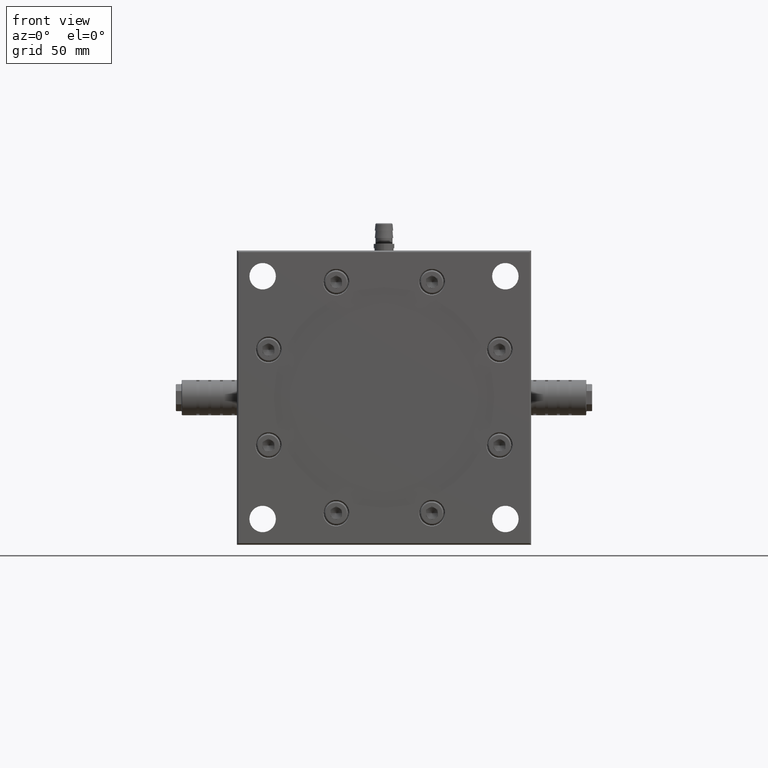
[diagram: clean part render]
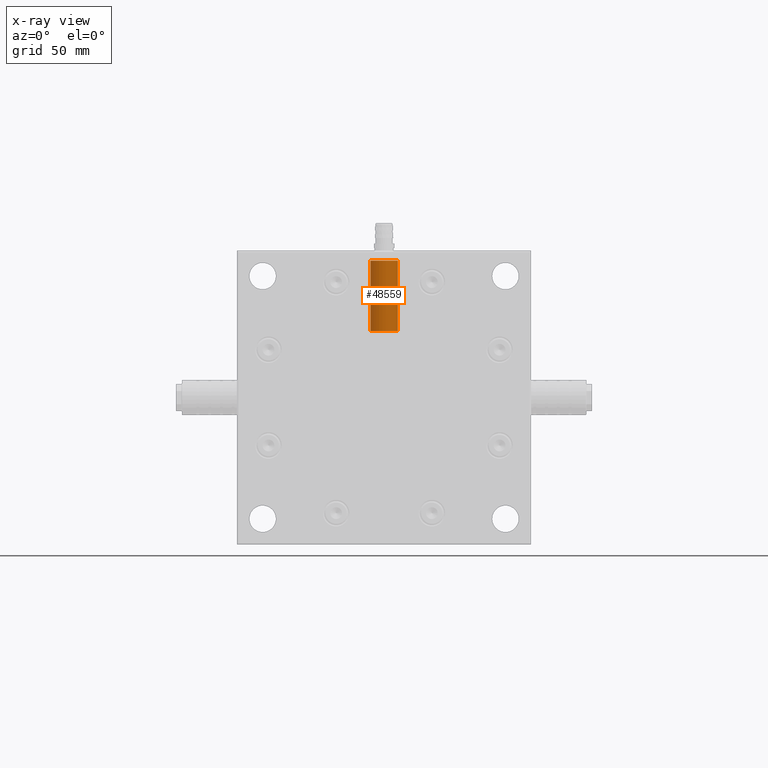
[diagram: x-ray — body ghosted, one internal face saturated and labeled with its STEP entity id]
A machine part, front view, then the same camera in x-ray: the body is ghosted and one INTERNAL B-rep face — a face not visible from any outside direction — is saturated and labeled: STEP entity #48559.
In plain terms, the highlighted cylindrical surface (edge-blend (fillet) strip) has radius 9.3155 mm, axis along (0, 0, 1).
Its self-contained STEP definition (entity closure, byte-faithful):
#1397 = VERTEX_POINT ( 'NONE', #15876 ) ;
#2544 = DIRECTION ( 'NONE',  ( 1.000000000000000000, 0.0000000000000000000, 0.0000000000000000000 ) ) ;
#4713 = ORIENTED_EDGE ( 'NONE', *, *, #41017, .F. ) ;
#5885 = VECTOR ( 'NONE', #41529, 1000.000000000000000 ) ;
#7568 = CIRCLE ( 'NONE', #7927, 9.315500000000000100 ) ;
#7927 = AXIS2_PLACEMENT_3D ( 'NONE', #26502, #10781, #38395 ) ;
#9877 = CYLINDRICAL_SURFACE ( 'NONE', #10546, 9.315500000000000100 ) ;
#10546 = AXIS2_PLACEMENT_3D ( 'NONE', #26220, #46415, #2544 ) ;
#10781 = DIRECTION ( 'NONE',  ( 0.0000000000000000000, 0.0000000000000000000, 1.000000000000000000 ) ) ;
#15416 = FACE_OUTER_BOUND ( 'NONE', #32144, .T. ) ;
#15876 = CARTESIAN_POINT ( 'NONE',  ( -9.315500000000000100, 170.0000000000000000, 93.00000000000000000 ) ) ;
#17119 = VERTEX_POINT ( 'NONE', #50415 ) ;
#18354 = DIRECTION ( 'NONE',  ( 1.224646799147352000E-016, 0.0000000000000000000, 1.000000000000000000 ) ) ;
#22020 = EDGE_CURVE ( 'NONE', #1397, #17119, #31773, .T. ) ;
#23548 = EDGE_CURVE ( 'NONE', #50624, #35027, #7568, .T. ) ;
#23960 = ORIENTED_EDGE ( 'NONE', *, *, #23548, .F. ) ;
#26220 = CARTESIAN_POINT ( 'NONE',  ( 0.0000000000000000000, 170.0000000000000000, 95.00000000000000000 ) ) ;
#26487 = CARTESIAN_POINT ( 'NONE',  ( 0.0000000000000000000, 170.0000000000000000, 93.00000000000000000 ) ) ;
#26502 = CARTESIAN_POINT ( 'NONE',  ( 0.0000000000000000000, 170.0000000000000000, 45.00000000000000000 ) ) ;
#28307 = ORIENTED_EDGE ( 'NONE', *, *, #40185, .T. ) ;
#29015 = AXIS2_PLACEMENT_3D ( 'NONE', #26487, #18354, #34562 ) ;
#31773 = CIRCLE ( 'NONE', #29015, 9.315500000000000100 ) ;
#32144 = EDGE_LOOP ( 'NONE', ( #23960, #28307, #40377, #4713 ) ) ;
#34562 = DIRECTION ( 'NONE',  ( 1.000000000000000000, 0.0000000000000000000, 0.0000000000000000000 ) ) ;
#35027 = VERTEX_POINT ( 'NONE', #36146 ) ;
#36146 = CARTESIAN_POINT ( 'NONE',  ( 9.315500000000000100, 170.0000000000000000, 45.00000000000000000 ) ) ;
#37715 = CARTESIAN_POINT ( 'NONE',  ( 9.315500000000000100, 170.0000000000000000, 95.00000000000000000 ) ) ;
#38395 = DIRECTION ( 'NONE',  ( 1.000000000000000000, 0.0000000000000000000, 0.0000000000000000000 ) ) ;
#40185 = EDGE_CURVE ( 'NONE', #50624, #1397, #43667, .T. ) ;
#40377 = ORIENTED_EDGE ( 'NONE', *, *, #22020, .T. ) ;
#41017 = EDGE_CURVE ( 'NONE', #35027, #17119, #48530, .T. ) ;
#41049 = CARTESIAN_POINT ( 'NONE',  ( -9.315500000000000100, 170.0000000000000000, 45.00000000000000000 ) ) ;
#41529 = DIRECTION ( 'NONE',  ( 0.0000000000000000000, 0.0000000000000000000, 1.000000000000000000 ) ) ;
#42502 = CARTESIAN_POINT ( 'NONE',  ( -9.315500000000000100, 170.0000000000000000, 95.00000000000000000 ) ) ;
#43667 = LINE ( 'NONE', #42502, #51118 ) ;
#46159 = DIRECTION ( 'NONE',  ( 0.0000000000000000000, 0.0000000000000000000, 1.000000000000000000 ) ) ;
#46415 = DIRECTION ( 'NONE',  ( 0.0000000000000000000, 0.0000000000000000000, 1.000000000000000000 ) ) ;
#48530 = LINE ( 'NONE', #37715, #5885 ) ;
#48559 = ADVANCED_FACE ( 'NONE', ( #15416 ), #9877, .F. ) ;
#50415 = CARTESIAN_POINT ( 'NONE',  ( 9.315500000000000100, 170.0000000000000000, 93.00000000000000000 ) ) ;
#50624 = VERTEX_POINT ( 'NONE', #41049 ) ;
#51118 = VECTOR ( 'NONE', #46159, 1000.000000000000000 ) ;